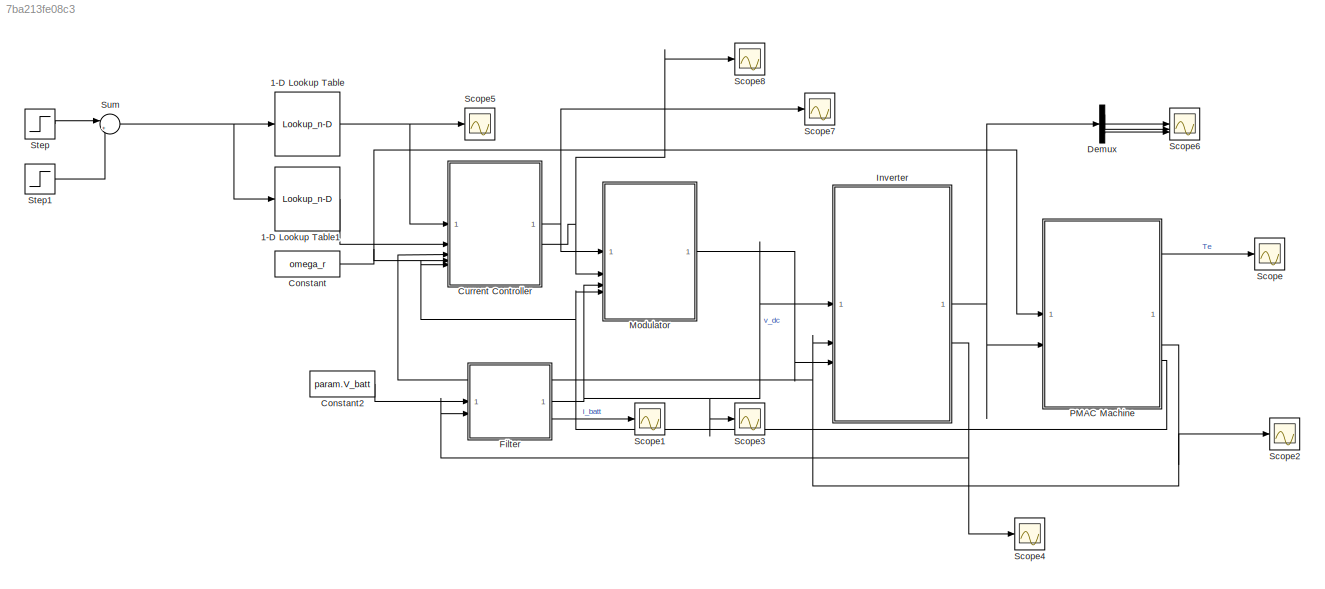
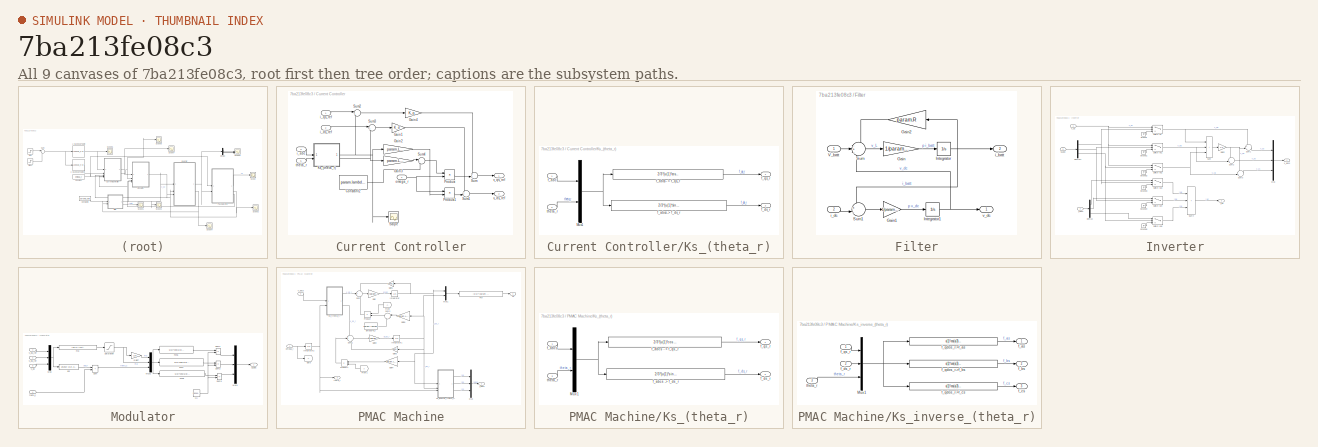
[diagram: thumbnail index - all 9 canvases of the model, root first then tree order]
MODEL slx_7ba213fe08c3
KIND model
CONFIG AbsTol = auto
CONFIG EnableMultiTasking = off
CONFIG FixedStep = auto
CONFIG MaxStep = 5e-6
CONFIG MinStep = 1e-19
CONFIG RelTol = 1e-3
CONFIG SampleTimeConstraint = Unconstrained
CONFIG SolverName = ode23tb
CONFIG StartTime = 0.0
CONFIG StopTime = 0.15
BLOCK [Lookup_n-D] 1-D Lookup Table
  BreakpointsForDimension1 = T_e
  InputPortMap = u0
  InternalRulePriority = Speed
  NumberOfTableDimensions = 1
  RndMeth = Simplest
  Table = i_qs
BLOCK [Lookup_n-D] 1-D Lookup Table1
  BreakpointsForDimension1 = T_e
  InputPortMap = u0
  InternalRulePriority = Speed
  NumberOfTableDimensions = 1
  RndMeth = Simplest
  Table = i_ds
BLOCK [Constant] Constant
  Value = omega_r
BLOCK [Constant] Constant2
  Value = param.V_batt
BLOCK [SubSystem] Current Controller
BLOCK [Constant] Current Controller/Constant2
  Value = param.lambda_m
BLOCK [Gain] Current Controller/Gain1
  Gain = K_d
BLOCK [Gain] Current Controller/Gain2
  Gain = param.L_q
BLOCK [Gain] Current Controller/Gain3
  Gain = param.L_d
BLOCK [Gain] Current Controller/Gain4
  Gain = K_q
BLOCK [SubSystem] Current Controller/Ks_(theta_r)
BLOCK [Mux] Current Controller/Ks_(theta_r)/Mux1
  DisplayOption = bar
  Inputs = 2
BLOCK [Inport] Current Controller/Ks_(theta_r)/f_abc
BLOCK [Fcn] Current Controller/Ks_(theta_r)/f_abcs - > f_qs_r
  Expr = 2/3*(u(1)*cos(u(4))+u(2)*cos(u(4)-2*pi/3)+u(3)*cos(u(4)+2*pi/3))
BLOCK [Fcn] Current Controller/Ks_(theta_r)/f_abcs -> f_ds_r
  Expr = 2/3*(u(1)*sin(u(4))+u(2)*sin(u(4)-2*pi/3)+u(3)*sin(u(4)+2*pi/3))
BLOCK [Outport] Current Controller/Ks_(theta_r)/f_ds_r
  Port = 2
  VectorParamsAs1DForOutWhenUnconnected = off
BLOCK [Outport] Current Controller/Ks_(theta_r)/f_qs_r
  VectorParamsAs1DForOutWhenUnconnected = off
BLOCK [Inport] Current Controller/Ks_(theta_r)/theta_r
  Port = 2
BLOCK [Product] Current Controller/Product
BLOCK [Product] Current Controller/Product1
BLOCK [Scope] Current Controller/Scope
  Floating = off
  NumInputPorts = 1
  ScopeSpecificationString = Simulink.scopes.TimeScopeBlockCfg('CurrentConfiguration', extmgr.ConfigurationSet(extmgr.Configuration('Core','General UI',true,'FigureColor',[1 1 1]),extmgr.Configuration('Core','Source UI',true),extmgr.Configuration('Sources','WiredSimulink',true,'DataLoggingVariableName','ScopeData1'),extmgr.Configuration('Visuals','Time Domain',true,'SerializedDisplays',{struct('MinYLimReal','-203.38512','MaxY...<+2319ch>
BLOCK [Sum] Current Controller/Sum
  Inputs = ++|
BLOCK [Sum] Current Controller/Sum1
  Inputs = +-|
BLOCK [Sum] Current Controller/Sum2
  Inputs = |+-
BLOCK [Sum] Current Controller/Sum3
  Inputs = |+-
BLOCK [Sum] Current Controller/Sum4
  Inputs = |++
BLOCK [Inport] Current Controller/i_abc
  Port = 3
BLOCK [Inport] Current Controller/i_ds_ref
  Port = 2
BLOCK [Inport] Current Controller/i_qs_ref
BLOCK [Inport] Current Controller/omega_r
  Port = 4
BLOCK [Inport] Current Controller/theta_r
  Port = 5
BLOCK [Outport] Current Controller/v_ds_ref
  Port = 2
  VectorParamsAs1DForOutWhenUnconnected = off
BLOCK [Outport] Current Controller/v_qs_ref
  VectorParamsAs1DForOutWhenUnconnected = off
BLOCK [Demux] Demux
  Outputs = 3
BLOCK [SubSystem] Filter
BLOCK [Gain] Filter/Gain
  Gain = 1/param.L
BLOCK [Gain] Filter/Gain1
  Gain = 1/param.C
BLOCK [Gain] Filter/Gain2
  Gain = param.R
BLOCK [Integrator] Filter/Integrator
BLOCK [Integrator] Filter/Integrator1
  InitialCondition = param.V_batt
BLOCK [Sum] Filter/Sum
  Inputs = -+-
BLOCK [Sum] Filter/Sum1
  Inputs = +-|
BLOCK [Inport] Filter/V_batt
BLOCK [Outport] Filter/i_batt
  Port = 2
  VectorParamsAs1DForOutWhenUnconnected = off
BLOCK [Inport] Filter/i_dc
  Port = 2
BLOCK [Outport] Filter/v_dc
  VectorParamsAs1DForOutWhenUnconnected = off
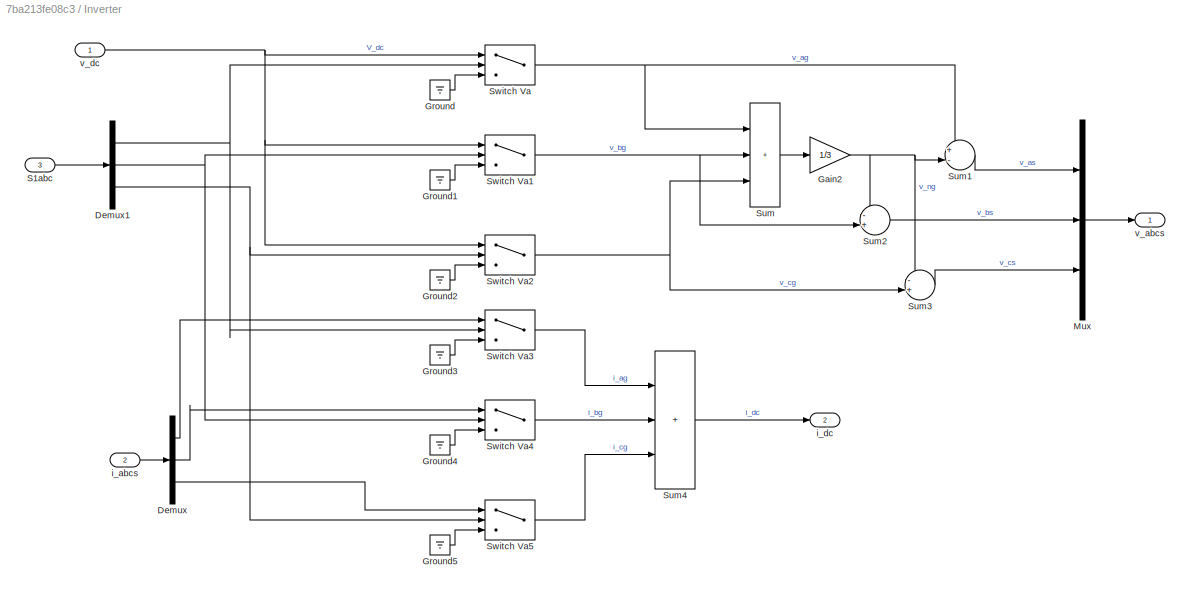
BLOCK [SubSystem] Inverter
BLOCK [Demux] Inverter/Demux
  Outputs = 3
BLOCK [Demux] Inverter/Demux1
  Outputs = 3
BLOCK [Gain] Inverter/Gain2
  Gain = 1/3
BLOCK [Ground] Inverter/Ground
BLOCK [Ground] Inverter/Ground1
BLOCK [Ground] Inverter/Ground2
BLOCK [Ground] Inverter/Ground3
BLOCK [Ground] Inverter/Ground4
BLOCK [Ground] Inverter/Ground5
BLOCK [Mux] Inverter/Mux
  DisplayOption = bar
  Inputs = 3
BLOCK [Inport] Inverter/S1abc
  Port = 3
BLOCK [Sum] Inverter/Sum
  IconShape = rectangular
  Inputs = +++
BLOCK [Sum] Inverter/Sum1
  Inputs = +-|
BLOCK [Sum] Inverter/Sum2
  Inputs = -+|
BLOCK [Sum] Inverter/Sum3
  Inputs = -+|
BLOCK [Sum] Inverter/Sum4
  IconShape = rectangular
  Inputs = +++
BLOCK [Switch] Inverter/Switch Va
  Criteria = u2 > Threshold
  InputSameDT = off
  SaturateOnIntegerOverflow = off
BLOCK [Switch] Inverter/Switch Va1
  Criteria = u2 > Threshold
  InputSameDT = off
  SaturateOnIntegerOverflow = off
BLOCK [Switch] Inverter/Switch Va2
  Criteria = u2 > Threshold
  InputSameDT = off
  SaturateOnIntegerOverflow = off
BLOCK [Switch] Inverter/Switch Va3
  Criteria = u2 > Threshold
  InputSameDT = off
  SaturateOnIntegerOverflow = off
BLOCK [Switch] Inverter/Switch Va4
  Criteria = u2 > Threshold
  InputSameDT = off
  SaturateOnIntegerOverflow = off
BLOCK [Switch] Inverter/Switch Va5
  Criteria = u2 > Threshold
  InputSameDT = off
  SaturateOnIntegerOverflow = off
BLOCK [Inport] Inverter/i_abcs
  Port = 2
BLOCK [Outport] Inverter/i_dc
  Port = 2
  VectorParamsAs1DForOutWhenUnconnected = off
BLOCK [Outport] Inverter/v_abcs
  VectorParamsAs1DForOutWhenUnconnected = off
BLOCK [Inport] Inverter/v_dc
BLOCK [SubSystem] Modulator
BLOCK [Fcn] Modulator/Fcn6
  Expr = u(2)*cos(u(3))-u(1)*cos(3*u(3))
BLOCK [Fcn] Modulator/Fcn7
  Expr = u(2)*cos(u(3)-2*pi/3)-u(1)*cos(3*u(3))
BLOCK [Fcn] Modulator/Fcn8
  Expr = u(2)*cos(u(3)+2*pi/3)-u(1)*cos(3*u(3))
BLOCK [Gain] Modulator/Gain7
  Gain = 1/6
  NameLocation = top
BLOCK [Mux] Modulator/Mux
  DisplayOption = bar
  Inputs = 3
BLOCK [Mux] Modulator/Mux1
  DisplayOption = bar
  Inputs = 3
BLOCK [Mux] Modulator/Mux2
  DisplayOption = bar
  Inputs = 3
BLOCK [Outport] Modulator/S1abc
  VectorParamsAs1DForOutWhenUnconnected = off
BLOCK [Saturate] Modulator/Saturation
  LowerLimit = 0
  NameLocation = top
  UpperLimit = 2/sqrt(3)
BLOCK [Sum] Modulator/Sum
  IconShape = rectangular
BLOCK [Sum] Modulator/Sum1
  IconShape = rectangular
  Inputs = +-
BLOCK [Sum] Modulator/Sum2
  IconShape = rectangular
  Inputs = +-
BLOCK [Sum] Modulator/Sum3
  IconShape = rectangular
  Inputs = +-
BLOCK [Fcn] Modulator/ma
  Expr = (2/u(3))*sqrt(u(1)^2+u(2)^2)
BLOCK [Fcn] Modulator/phi
  Expr = atan2(-u(2),u(1))
BLOCK [Inport] Modulator/theta_r
  Port = 4
BLOCK [Reference] Modulator/tri  REF=simulink/Sources/Repeating
Sequence
  SourceBlock = simulink/Sources/Repeating\nSequence
  SourceType = Repeating table
BLOCK [Inport] Modulator/v_dc
  Port = 3
BLOCK [Inport] Modulator/v_ds_ref
  Port = 2
BLOCK [Inport] Modulator/v_qs_ref
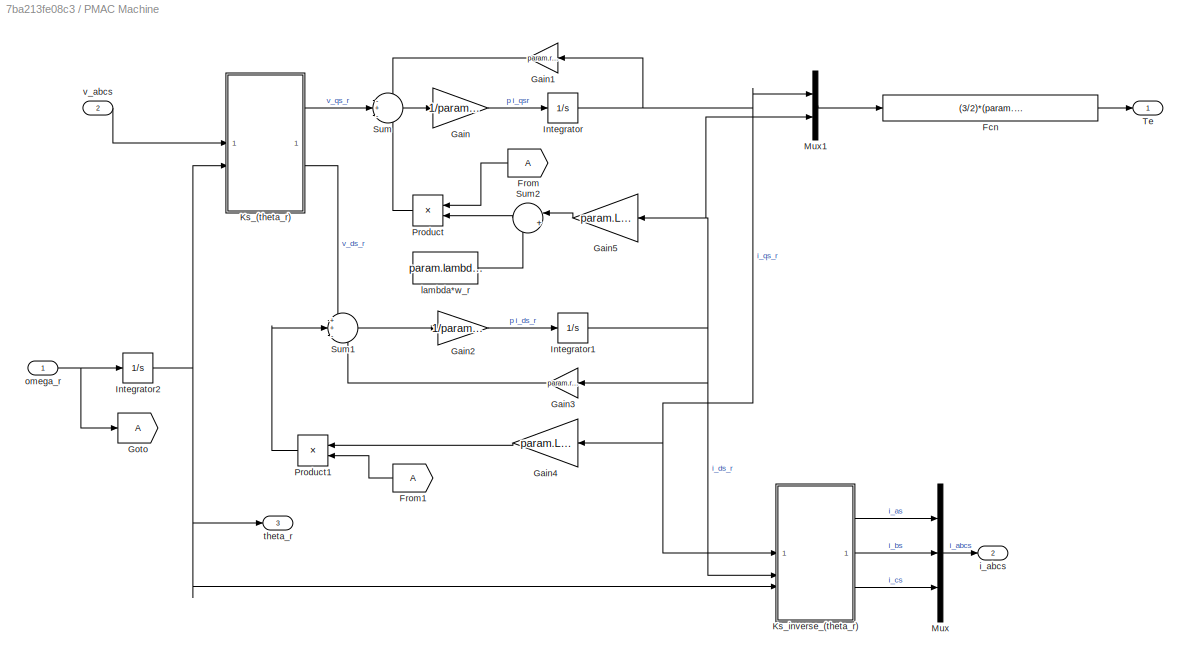
BLOCK [SubSystem] PMAC Machine
BLOCK [Fcn] PMAC Machine/Fcn
  Expr = (3/2)*(param.P/2)*(param.lambda_m*u(1) + (param.L_d-param.L_q)*u(1)*u(2))
BLOCK [From] PMAC Machine/From
BLOCK [From] PMAC Machine/From1
BLOCK [Gain] PMAC Machine/Gain
  Gain = 1/param.L_q
BLOCK [Gain] PMAC Machine/Gain1
  Gain = param.r_s
BLOCK [Gain] PMAC Machine/Gain2
  Gain = 1/param.L_d
BLOCK [Gain] PMAC Machine/Gain3
  Gain = param.r_s
BLOCK [Gain] PMAC Machine/Gain4
  Gain = param.L_q
BLOCK [Gain] PMAC Machine/Gain5
  Gain = param.L_d
BLOCK [Goto] PMAC Machine/Goto
BLOCK [Integrator] PMAC Machine/Integrator
BLOCK [Integrator] PMAC Machine/Integrator1
BLOCK [Integrator] PMAC Machine/Integrator2
BLOCK [SubSystem] PMAC Machine/Ks_(theta_r)
BLOCK [Mux] PMAC Machine/Ks_(theta_r)/Mux1
  DisplayOption = bar
  Inputs = 2
BLOCK [Inport] PMAC Machine/Ks_(theta_r)/f_abcs
BLOCK [Fcn] PMAC Machine/Ks_(theta_r)/f_abcs - > f_qs_r
  Expr = 2/3*(u(1)*cos(u(4))+u(2)*cos(u(4)-2*pi/3)+u(3)*cos(u(4)+2*pi/3))
BLOCK [Fcn] PMAC Machine/Ks_(theta_r)/f_abcs -> f_ds_r
  Expr = 2/3*(u(1)*sin(u(4))+u(2)*sin(u(4)-2*pi/3)+u(3)*sin(u(4)+2*pi/3))
BLOCK [Outport] PMAC Machine/Ks_(theta_r)/f_ds_r
  Port = 2
  VectorParamsAs1DForOutWhenUnconnected = off
BLOCK [Outport] PMAC Machine/Ks_(theta_r)/f_qs_r
  VectorParamsAs1DForOutWhenUnconnected = off
BLOCK [Inport] PMAC Machine/Ks_(theta_r)/theta_r
  Port = 2
BLOCK [SubSystem] PMAC Machine/Ks_inverse_(theta_r)
BLOCK [Mux] PMAC Machine/Ks_inverse_(theta_r)/Mux1
  DisplayOption = bar
  Inputs = 3
BLOCK [Outport] PMAC Machine/Ks_inverse_(theta_r)/f_as
  VectorParamsAs1DForOutWhenUnconnected = off
BLOCK [Outport] PMAC Machine/Ks_inverse_(theta_r)/f_bs
  Port = 2
  VectorParamsAs1DForOutWhenUnconnected = off
BLOCK [Outport] PMAC Machine/Ks_inverse_(theta_r)/f_cs
  Port = 3
  VectorParamsAs1DForOutWhenUnconnected = off
BLOCK [Inport] PMAC Machine/Ks_inverse_(theta_r)/f_ds_r
  Port = 2
BLOCK [Fcn] PMAC Machine/Ks_inverse_(theta_r)/f_qdos_r->f_as
  Expr = u(1)*cos(u(3))+u(2)*sin(u(3))
BLOCK [Fcn] PMAC Machine/Ks_inverse_(theta_r)/f_qdos_r->f_bs
  Expr = u(1)*cos(u(3)-2*pi/3)+u(2)*sin(u(3)-2*pi/3)
BLOCK [Fcn] PMAC Machine/Ks_inverse_(theta_r)/f_qdos_r->f_cs
  Expr = u(1)*cos(u(3)+2*pi/3)+u(2)*sin(u(3)+2*pi/3)
BLOCK [Inport] PMAC Machine/Ks_inverse_(theta_r)/f_qs_r
BLOCK [Inport] PMAC Machine/Ks_inverse_(theta_r)/theta_r
  Port = 3
BLOCK [Mux] PMAC Machine/Mux
  DisplayOption = bar
  Inputs = 3
  NameLocation = top
BLOCK [Mux] PMAC Machine/Mux1
  DisplayOption = bar
  Inputs = 2
  NameLocation = top
BLOCK [Product] PMAC Machine/Product
BLOCK [Product] PMAC Machine/Product1
BLOCK [Sum] PMAC Machine/Sum
  Inputs = -+-
BLOCK [Sum] PMAC Machine/Sum1
  Inputs = ++-
BLOCK [Sum] PMAC Machine/Sum2
  Inputs = |++
BLOCK [Outport] PMAC Machine/Te
  VectorParamsAs1DForOutWhenUnconnected = off
BLOCK [Outport] PMAC Machine/i_abcs
  Port = 2
  VectorParamsAs1DForOutWhenUnconnected = off
BLOCK [Constant] PMAC Machine/lambda*w_r
  NameLocation = top
  Value = param.lambda_m
BLOCK [Inport] PMAC Machine/omega_r
BLOCK [Outport] PMAC Machine/theta_r
  Port = 3
  VectorParamsAs1DForOutWhenUnconnected = off
BLOCK [Inport] PMAC Machine/v_abcs
  Port = 2
BLOCK [Scope] Scope
  Floating = off
  NumInputPorts = 1
  ScopeSpecificationString = Simulink.scopes.TimeScopeBlockCfg('CurrentConfiguration', extmgr.ConfigurationSet(extmgr.Configuration('Core','General UI',true,'FigureColor',[1 1 1]),extmgr.Configuration('Core','Source UI',true),extmgr.Configuration('Sources','WiredSimulink',true),extmgr.Configuration('Visuals','Time Domain',true,'SerializedDisplays',{struct('MinYLimReal','-498.65173','MaxYLimReal','498.72976','YLabelReal','','M...<+2309ch>
BLOCK [Scope] Scope1
  Floating = off
  NumInputPorts = 1
  ScopeSpecificationString = Simulink.scopes.TimeScopeBlockCfg('CurrentConfiguration', extmgr.ConfigurationSet(extmgr.Configuration('Core','General UI',true,'FigureColor',[1 1 1]),extmgr.Configuration('Core','Source UI',true),extmgr.Configuration('Sources','WiredSimulink',true,'DataLoggingVariableName','ScopeData1'),extmgr.Configuration('Visuals','Time Domain',true,'SerializedDisplays',{struct('MinYLimReal','-408.75323','MaxY...<+2325ch>
BLOCK [Scope] Scope2
  Floating = off
  NumInputPorts = 1
  ScopeSpecificationString = Simulink.scopes.TimeScopeBlockCfg('CurrentConfiguration', extmgr.ConfigurationSet(extmgr.Configuration('Core','General UI',true,'FigureColor',[1 1 1]),extmgr.Configuration('Core','Source UI',true),extmgr.Configuration('Sources','WiredSimulink',true,'DataLoggingVariableName','ScopeData2'),extmgr.Configuration('Visuals','Time Domain',true,'SerializedDisplays',{struct('MinYLimReal','-17.49382','MaxYL...<+2353ch>
BLOCK [Scope] Scope3
  Floating = off
  NumInputPorts = 1
  ScopeSpecificationString = Simulink.scopes.TimeScopeBlockCfg('CurrentConfiguration', extmgr.ConfigurationSet(extmgr.Configuration('Core','General UI',true,'FigureColor',[1 1 1]),extmgr.Configuration('Core','Source UI',true),extmgr.Configuration('Sources','WiredSimulink',true,'DataLoggingVariableName','ScopeData1'),extmgr.Configuration('Visuals','Time Domain',true,'SerializedDisplays',{struct('MinYLimReal','377.57084','MaxYL...<+2278ch>
BLOCK [Scope] Scope4
  Floating = off
  NumInputPorts = 1
  ScopeSpecificationString = Simulink.scopes.TimeScopeBlockCfg('CurrentConfiguration', extmgr.ConfigurationSet(extmgr.Configuration('Core','General UI',true,'FigureColor',[1 1 1]),extmgr.Configuration('Core','Source UI',true),extmgr.Configuration('Sources','WiredSimulink',true,'DataLoggingVariableName','ScopeData1'),extmgr.Configuration('Visuals','Time Domain',true,'SerializedDisplays',{struct('MinYLimReal','-363.12626','MaxY...<+2319ch>
BLOCK [Scope] Scope5
  Floating = off
  NumInputPorts = 1
  ScopeSpecificationString = Simulink.scopes.TimeScopeBlockCfg('CurrentConfiguration', extmgr.ConfigurationSet(extmgr.Configuration('Core','General UI',true,'FigureColor',[1 1 1]),extmgr.Configuration('Core','Source UI',true),extmgr.Configuration('Sources','WiredSimulink',true,'DataLoggingVariableName','ScopeData2'),extmgr.Configuration('Visuals','Time Domain',true,'SerializedDisplays',{struct('MinYLimReal','-156.25','MaxYLim...<+2255ch>
BLOCK [Scope] Scope6
  Floating = off
  NumInputPorts = 3
  ScopeSpecificationString = Simulink.scopes.TimeScopeBlockCfg('CurrentConfiguration', extmgr.ConfigurationSet(extmgr.Configuration('Core','General UI',true,'FigureColor',[1 1 1]),extmgr.Configuration('Core','Source UI',true),extmgr.Configuration('Sources','WiredSimulink',true,'DataLoggingVariableName','ScopeData1'),extmgr.Configuration('Visuals','Time Domain',true,'SerializedDisplays',{struct('MinYLimReal','-498.65173','MaxY...<+3822ch>
BLOCK [Scope] Scope7
  Floating = off
  NumInputPorts = 1
  ScopeSpecificationString = Simulink.scopes.TimeScopeBlockCfg('CurrentConfiguration', extmgr.ConfigurationSet(extmgr.Configuration('Core','General UI',true,'FigureColor',[1 1 1]),extmgr.Configuration('Core','Source UI',true),extmgr.Configuration('Sources','WiredSimulink',true,'DataLoggingVariableName','ScopeData1'),extmgr.Configuration('Visuals','Time Domain',true,'SerializedDisplays',{struct('MinYLimReal','-156.25','MaxYLim...<+2255ch>
BLOCK [Scope] Scope8
  Floating = off
  NumInputPorts = 1
  ScopeSpecificationString = Simulink.scopes.TimeScopeBlockCfg('CurrentConfiguration', extmgr.ConfigurationSet(extmgr.Configuration('Core','General UI',true,'FigureColor',[1 1 1]),extmgr.Configuration('Core','Source UI',true),extmgr.Configuration('Sources','WiredSimulink',true,'DataLoggingVariableName','ScopeData2'),extmgr.Configuration('Visuals','Time Domain',true,'SerializedDisplays',{struct('MinYLimReal','-156.25','MaxYLim...<+2255ch>
BLOCK [Step] Step
  After = 400
  SampleTime = 0
  Time = 0.05
BLOCK [Step] Step1
  After = 800
  SampleTime = 0
  Time = 0.1
BLOCK [Sum] Sum
  Inputs = |+-
LINE 1-D Lookup Table1:1 -> Current Controller:2
NET 1-D Lookup Table:1 -> Current Controller:1, Scope5:1
LINE Constant2:1 -> Filter:1
NET Constant:1 -> Current Controller:4, PMAC Machine:1
LINE Current Controller/Constant2:1 -> Current Controller/Sum4:2
LINE Current Controller/Gain1:1 -> Current Controller/Sum1:1
LINE Current Controller/Gain2:1 -> Current Controller/Product1:2
LINE Current Controller/Gain3:1 -> Current Controller/Sum4:1
LINE Current Controller/Gain4:1 -> Current Controller/Sum:1
NET Current Controller/Ks_(theta_r)/Mux1:1 -> Current Controller/Ks_(theta_r)/f_abcs - > f_qs_r:1, Current Controller/Ks_(theta_r)/f_abcs -> f_ds_r:1
LINE Current Controller/Ks_(theta_r)/f_abc:1 -> Current Controller/Ks_(theta_r)/Mux1:1
LINE Current Controller/Ks_(theta_r)/f_abcs - > f_qs_r:1 -> Current Controller/Ks_(theta_r)/f_qs_r:1
LINE Current Controller/Ks_(theta_r)/f_abcs -> f_ds_r:1 -> Current Controller/Ks_(theta_r)/f_ds_r:1
LINE Current Controller/Ks_(theta_r)/theta_r:1 -> Current Controller/Ks_(theta_r)/Mux1:2
NET Current Controller/Ks_(theta_r):1 -> Current Controller/Gain2:1, Current Controller/Scope:1, Current Controller/Sum2:2
NET Current Controller/Ks_(theta_r):2 -> Current Controller/Gain3:1, Current Controller/Sum3:2
LINE Current Controller/Product1:1 -> Current Controller/Sum1:2
LINE Current Controller/Product:1 -> Current Controller/Sum:2
LINE Current Controller/Sum1:1 -> Current Controller/v_ds_ref:1
LINE Current Controller/Sum2:1 -> Current Controller/Gain4:1
LINE Current Controller/Sum3:1 -> Current Controller/Gain1:1
LINE Current Controller/Sum4:1 -> Current Controller/Product:1
LINE Current Controller/Sum:1 -> Current Controller/v_qs_ref:1
LINE Current Controller/i_abc:1 -> Current Controller/Ks_(theta_r):1
LINE Current Controller/i_ds_ref:1 -> Current Controller/Sum3:1
LINE Current Controller/i_qs_ref:1 -> Current Controller/Sum2:1
NET Current Controller/omega_r:1 -> Current Controller/Product1:1, Current Controller/Product:2
LINE Current Controller/theta_r:1 -> Current Controller/Ks_(theta_r):2
NET Current Controller:1 -> Modulator:1, Scope7:1
NET Current Controller:2 -> Modulator:2, Scope8:1
LINE Demux:1 -> Scope6:1
LINE Demux:2 -> Scope6:2
LINE Demux:3 -> Scope6:3
LINE Filter/Gain1:1 -> Filter/Integrator1:1
LINE Filter/Gain2:1 -> Filter/Sum:1
LINE Filter/Gain:1 -> Filter/Integrator:1
NET Filter/Integrator1:1 -> Filter/Sum:3, Filter/v_dc:1
NET Filter/Integrator:1 -> Filter/Gain2:1, Filter/Sum1:1, Filter/i_batt:1
LINE Filter/Sum1:1 -> Filter/Gain1:1
LINE Filter/Sum:1 -> Filter/Gain:1
LINE Filter/V_batt:1 -> Filter/Sum:2
LINE Filter/i_dc:1 -> Filter/Sum1:2
NET Filter:1 -> Inverter:1, Modulator:3, Scope3:1
LINE Filter:2 -> Scope1:1
NET Inverter/Demux1:1 -> Inverter/Switch Va3:2, Inverter/Switch Va:2
NET Inverter/Demux1:2 -> Inverter/Switch Va1:2, Inverter/Switch Va4:2
NET Inverter/Demux1:3 -> Inverter/Switch Va2:2, Inverter/Switch Va5:2
LINE Inverter/Demux:1 -> Inverter/Switch Va3:1
LINE Inverter/Demux:2 -> Inverter/Switch Va4:1
LINE Inverter/Demux:3 -> Inverter/Switch Va5:1
NET Inverter/Gain2:1 -> Inverter/Sum1:2, Inverter/Sum2:1, Inverter/Sum3:1
LINE Inverter/Ground1:1 -> Inverter/Switch Va1:3
LINE Inverter/Ground2:1 -> Inverter/Switch Va2:3
LINE Inverter/Ground3:1 -> Inverter/Switch Va3:3
LINE Inverter/Ground4:1 -> Inverter/Switch Va4:3
LINE Inverter/Ground5:1 -> Inverter/Switch Va5:3
LINE Inverter/Ground:1 -> Inverter/Switch Va:3
LINE Inverter/Mux:1 -> Inverter/v_abcs:1
LINE Inverter/S1abc:1 -> Inverter/Demux1:1
LINE Inverter/Sum1:1 -> Inverter/Mux:1
LINE Inverter/Sum2:1 -> Inverter/Mux:2
LINE Inverter/Sum3:1 -> Inverter/Mux:3
LINE Inverter/Sum4:1 -> Inverter/i_dc:1
LINE Inverter/Sum:1 -> Inverter/Gain2:1
NET Inverter/Switch Va1:1 -> Inverter/Sum2:2, Inverter/Sum:2
NET Inverter/Switch Va2:1 -> Inverter/Sum3:2, Inverter/Sum:3
LINE Inverter/Switch Va3:1 -> Inverter/Sum4:1
LINE Inverter/Switch Va4:1 -> Inverter/Sum4:2
LINE Inverter/Switch Va5:1 -> Inverter/Sum4:3
NET Inverter/Switch Va:1 -> Inverter/Sum1:1, Inverter/Sum:1
LINE Inverter/i_abcs:1 -> Inverter/Demux:1
NET Inverter/v_dc:1 -> Inverter/Switch Va1:1, Inverter/Switch Va2:1, Inverter/Switch Va:1
NET Inverter:1 -> Demux:1, PMAC Machine:2
NET Inverter:2 -> Filter:2, Scope4:1
LINE Modulator/Fcn6:1 -> Modulator/Sum1:1
LINE Modulator/Fcn7:1 -> Modulator/Sum2:1
LINE Modulator/Fcn8:1 -> Modulator/Sum3:1
LINE Modulator/Gain7:1 -> Modulator/Mux2:1
LINE Modulator/Mux1:1 -> Modulator/S1abc:1
NET Modulator/Mux2:1 -> Modulator/Fcn6:1, Modulator/Fcn7:1, Modulator/Fcn8:1
NET Modulator/Mux:1 -> Modulator/ma:1, Modulator/phi:1
NET Modulator/Saturation:1 -> Modulator/Gain7:1, Modulator/Mux2:2
LINE Modulator/Sum1:1 -> Modulator/Mux1:1
LINE Modulator/Sum2:1 -> Modulator/Mux1:2
LINE Modulator/Sum3:1 -> Modulator/Mux1:3
LINE Modulator/Sum:1 -> Modulator/Mux2:3
LINE Modulator/ma:1 -> Modulator/Saturation:1
LINE Modulator/phi:1 -> Modulator/Sum:1
LINE Modulator/theta_r:1 -> Modulator/Sum:2
NET Modulator/tri:1 -> Modulator/Sum1:2, Modulator/Sum2:2, Modulator/Sum3:2
LINE Modulator/v_dc:1 -> Modulator/Mux:3
LINE Modulator/v_ds_ref:1 -> Modulator/Mux:2
LINE Modulator/v_qs_ref:1 -> Modulator/Mux:1
LINE Modulator:1 -> Inverter:3
LINE PMAC Machine/Fcn:1 -> PMAC Machine/Te:1
LINE PMAC Machine/From1:1 -> PMAC Machine/Product1:2
LINE PMAC Machine/From:1 -> PMAC Machine/Product:1
LINE PMAC Machine/Gain1:1 -> PMAC Machine/Sum:1
LINE PMAC Machine/Gain2:1 -> PMAC Machine/Integrator1:1
LINE PMAC Machine/Gain3:1 -> PMAC Machine/Sum1:3
LINE PMAC Machine/Gain4:1 -> PMAC Machine/Product1:1
LINE PMAC Machine/Gain5:1 -> PMAC Machine/Sum2:1
LINE PMAC Machine/Gain:1 -> PMAC Machine/Integrator:1
NET PMAC Machine/Integrator1:1 -> PMAC Machine/Gain3:1, PMAC Machine/Gain5:1, PMAC Machine/Ks_inverse_(theta_r):2, PMAC Machine/Mux1:2
NET PMAC Machine/Integrator2:1 -> PMAC Machine/Ks_(theta_r):2, PMAC Machine/Ks_inverse_(theta_r):3, PMAC Machine/theta_r:1
NET PMAC Machine/Integrator:1 -> PMAC Machine/Gain1:1, PMAC Machine/Gain4:1, PMAC Machine/Ks_inverse_(theta_r):1, PMAC Machine/Mux1:1
NET PMAC Machine/Ks_(theta_r)/Mux1:1 -> PMAC Machine/Ks_(theta_r)/f_abcs - > f_qs_r:1, PMAC Machine/Ks_(theta_r)/f_abcs -> f_ds_r:1
LINE PMAC Machine/Ks_(theta_r)/f_abcs - > f_qs_r:1 -> PMAC Machine/Ks_(theta_r)/f_qs_r:1
LINE PMAC Machine/Ks_(theta_r)/f_abcs -> f_ds_r:1 -> PMAC Machine/Ks_(theta_r)/f_ds_r:1
LINE PMAC Machine/Ks_(theta_r)/f_abcs:1 -> PMAC Machine/Ks_(theta_r)/Mux1:1
LINE PMAC Machine/Ks_(theta_r)/theta_r:1 -> PMAC Machine/Ks_(theta_r)/Mux1:2
LINE PMAC Machine/Ks_(theta_r):1 -> PMAC Machine/Sum:2
LINE PMAC Machine/Ks_(theta_r):2 -> PMAC Machine/Sum1:1
NET PMAC Machine/Ks_inverse_(theta_r)/Mux1:1 -> PMAC Machine/Ks_inverse_(theta_r)/f_qdos_r->f_as:1, PMAC Machine/Ks_inverse_(theta_r)/f_qdos_r->f_bs:1, PMAC Machine/Ks_inverse_(theta_r)/f_qdos_r->f_cs:1
LINE PMAC Machine/Ks_inverse_(theta_r)/f_ds_r:1 -> PMAC Machine/Ks_inverse_(theta_r)/Mux1:2
LINE PMAC Machine/Ks_inverse_(theta_r)/f_qdos_r->f_as:1 -> PMAC Machine/Ks_inverse_(theta_r)/f_as:1
LINE PMAC Machine/Ks_inverse_(theta_r)/f_qdos_r->f_bs:1 -> PMAC Machine/Ks_inverse_(theta_r)/f_bs:1
LINE PMAC Machine/Ks_inverse_(theta_r)/f_qdos_r->f_cs:1 -> PMAC Machine/Ks_inverse_(theta_r)/f_cs:1
LINE PMAC Machine/Ks_inverse_(theta_r)/f_qs_r:1 -> PMAC Machine/Ks_inverse_(theta_r)/Mux1:1
LINE PMAC Machine/Ks_inverse_(theta_r)/theta_r:1 -> PMAC Machine/Ks_inverse_(theta_r)/Mux1:3
LINE PMAC Machine/Ks_inverse_(theta_r):1 -> PMAC Machine/Mux:1
LINE PMAC Machine/Ks_inverse_(theta_r):2 -> PMAC Machine/Mux:2
LINE PMAC Machine/Ks_inverse_(theta_r):3 -> PMAC Machine/Mux:3
LINE PMAC Machine/Mux1:1 -> PMAC Machine/Fcn:1
LINE PMAC Machine/Mux:1 -> PMAC Machine/i_abcs:1
LINE PMAC Machine/Product1:1 -> PMAC Machine/Sum1:2
LINE PMAC Machine/Product:1 -> PMAC Machine/Sum:3
LINE PMAC Machine/Sum1:1 -> PMAC Machine/Gain2:1
LINE PMAC Machine/Sum2:1 -> PMAC Machine/Product:2
LINE PMAC Machine/Sum:1 -> PMAC Machine/Gain:1
LINE PMAC Machine/lambda*w_r:1 -> PMAC Machine/Sum2:2
NET PMAC Machine/omega_r:1 -> PMAC Machine/Goto:1, PMAC Machine/Integrator2:1
LINE PMAC Machine/v_abcs:1 -> PMAC Machine/Ks_(theta_r):1
LINE PMAC Machine:1 -> Scope:1
NET PMAC Machine:2 -> Current Controller:3, Inverter:2, Scope2:1
NET PMAC Machine:3 -> Current Controller:5, Modulator:4
LINE Step1:1 -> Sum:2
LINE Step:1 -> Sum:1
NET Sum:1 -> 1-D Lookup Table1:1, 1-D Lookup Table:1
note: NET lines group one-source signal fan-out (src -> all destinations, sorted); 1:1 wires keep LINE
